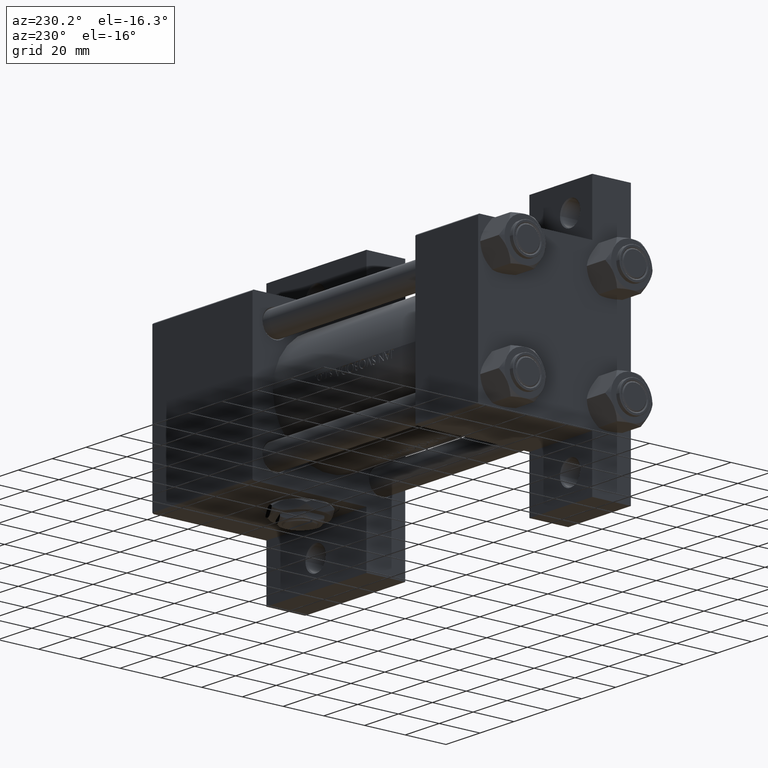
[diagram: clean part render]
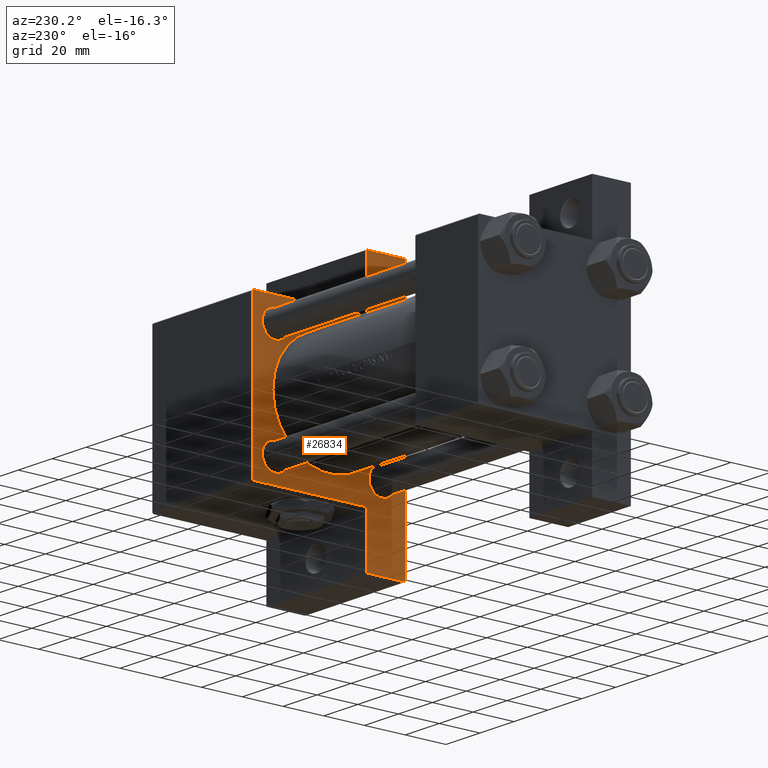
[diagram: same view with one face highlighted and labeled with its STEP entity id]
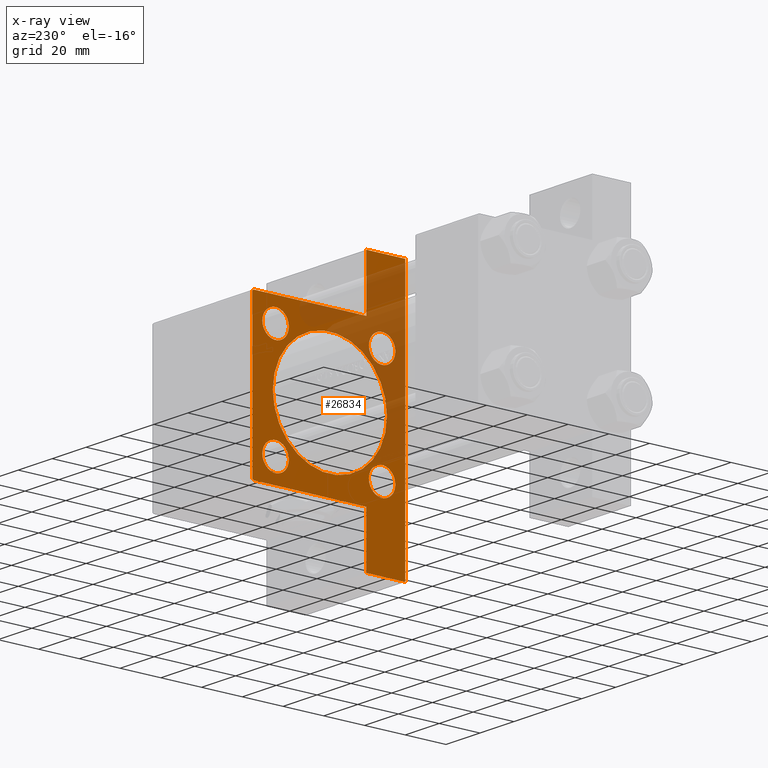
[diagram: x-ray of the same camera — body ghosted, the highlighted face saturated]
A machine part, auxiliary view. The second image highlights one B-rep face of the part: STEP entity #26834.
The next image is the same camera in x-ray: the body ghosted, the highlighted face saturated — about 36% of this face is hidden behind the body in this view.
In plain terms, the highlighted planar face has unit normal (-1, 0, 0).
Its self-contained STEP definition (entity closure, byte-faithful):
#18 = AXIS2_PLACEMENT_3D ( 'NONE', #5760, #30094, #47606 ) ;
#298 = CIRCLE ( 'NONE', #39264, 28.00000000000000000 ) ;
#419 = DIRECTION ( 'NONE',  ( 0.000000000000000000, 0.7071067811865672237, -0.7071067811865279218 ) ) ;
#515 = ORIENTED_EDGE ( 'NONE', *, *, #3621, .T. ) ;
#531 = DIRECTION ( 'NONE',  ( 0.000000000000000000, -1.000000000000000000, -1.850371707708594316E-16 ) ) ;
#606 = ORIENTED_EDGE ( 'NONE', *, *, #25821, .T. ) ;
#1743 = VECTOR ( 'NONE', #18854, 1000.000000000000000 ) ;
#2080 = ORIENTED_EDGE ( 'NONE', *, *, #12250, .F. ) ;
#2474 = ORIENTED_EDGE ( 'NONE', *, *, #16758, .T. ) ;
#2930 = EDGE_CURVE ( 'NONE', #35272, #12608, #9561, .T. ) ;
#3044 = EDGE_CURVE ( 'NONE', #8174, #33604, #43015, .T. ) ;
#3621 = EDGE_CURVE ( 'NONE', #36066, #31988, #38994, .T. ) ;
#3680 = VECTOR ( 'NONE', #8081, 1000.000000000000000 ) ;
#4305 = DIRECTION ( 'NONE',  ( 1.000000000000000000, 0.000000000000000000, -0.000000000000000000 ) ) ;
#4494 = LINE ( 'NONE', #19439, #42649 ) ;
#4589 = DIRECTION ( 'NONE',  ( 0.000000000000000000, 0.000000000000000000, -1.000000000000000000 ) ) ;
#4607 = CARTESIAN_POINT ( 'NONE',  ( 133.0000000000000000, 0.000000000000000000, 27.50000000000000000 ) ) ;
#4642 = ORIENTED_EDGE ( 'NONE', *, *, #33071, .T. ) ;
#4680 = LINE ( 'NONE', #46044, #30733 ) ;
#4736 = CARTESIAN_POINT ( 'NONE',  ( 133.0000000000000000, 0.000000000000000000, -0.5000000000000004441 ) ) ;
#5146 = CARTESIAN_POINT ( 'NONE',  ( 133.0000000000000000, 3.429011037612589276E-15, -28.50000000000000000 ) ) ;
#5760 = CARTESIAN_POINT ( 'NONE',  ( 133.0000000000000000, 26.14999999999999858, -26.15000000000000213 ) ) ;
#5762 = VERTEX_POINT ( 'NONE', #46088 ) ;
#5887 = EDGE_CURVE ( 'NONE', #12608, #35272, #19068, .T. ) ;
#5951 = ORIENTED_EDGE ( 'NONE', *, *, #24485, .T. ) ;
#6315 = LINE ( 'NONE', #44920, #45385 ) ;
#6337 = AXIS2_PLACEMENT_3D ( 'NONE', #11625, #7888, #38051 ) ;
#6656 = DIRECTION ( 'NONE',  ( 0.000000000000000000, 0.000000000000000000, 1.000000000000000000 ) ) ;
#7141 = FACE_BOUND ( 'NONE', #24046, .T. ) ;
#7302 = DIRECTION ( 'NONE',  ( 0.000000000000000000, 0.000000000000000000, 1.000000000000000000 ) ) ;
#7387 = FACE_OUTER_BOUND ( 'NONE', #27459, .T. ) ;
#7578 = ORIENTED_EDGE ( 'NONE', *, *, #27106, .T. ) ;
#7634 = LINE ( 'NONE', #19094, #19536 ) ;
#7745 = CARTESIAN_POINT ( 'NONE',  ( 133.0000000000000000, -37.50000000000000000, 36.99999999999995026 ) ) ;
#7888 = DIRECTION ( 'NONE',  ( 1.000000000000000000, 0.000000000000000000, -0.000000000000000000 ) ) ;
#8081 = DIRECTION ( 'NONE',  ( 0.000000000000000000, 0.000000000000000000, -1.000000000000000000 ) ) ;
#8174 = VERTEX_POINT ( 'NONE', #29026 ) ;
#8477 = CARTESIAN_POINT ( 'NONE',  ( 133.0000000000000000, 37.50000000000000000, 37.49999999999999289 ) ) ;
#8657 = CARTESIAN_POINT ( 'NONE',  ( 133.0000000000000000, 26.14999999999999858, 26.15000000000000213 ) ) ;
#9417 = CARTESIAN_POINT ( 'NONE',  ( 133.0000000000000000, -37.50000000000000000, -18.50000000000000000 ) ) ;
#9561 = CIRCLE ( 'NONE', #18, 6.500000000000008882 ) ;
#9635 = CARTESIAN_POINT ( 'NONE',  ( 133.0000000000000000, 26.14999999999999858, 32.65000000000000568 ) ) ;
#10545 = EDGE_LOOP ( 'NONE', ( #515, #19379 ) ) ;
#10857 = EDGE_CURVE ( 'NONE', #17666, #8174, #37314, .T. ) ;
#11210 = CARTESIAN_POINT ( 'NONE',  ( 133.0000000000000284, 63.49999999999997158, -18.50000000000000000 ) ) ;
#11625 = CARTESIAN_POINT ( 'NONE',  ( 133.0000000000000000, -26.14999999999999147, 26.15000000000000924 ) ) ;
#11654 = VERTEX_POINT ( 'NONE', #4607 ) ;
#11666 = CARTESIAN_POINT ( 'NONE',  ( 133.0000000000000000, 37.50000000000000000, 36.99999999999999289 ) ) ;
#11985 = DIRECTION ( 'NONE',  ( 0.000000000000000000, 0.000000000000000000, 1.000000000000000000 ) ) ;
#12189 = VECTOR ( 'NONE', #34632, 1000.000000000000000 ) ;
#12250 = EDGE_CURVE ( 'NONE', #21046, #38497, #30424, .T. ) ;
#12608 = VERTEX_POINT ( 'NONE', #31579 ) ;
#12757 = CIRCLE ( 'NONE', #26328, 6.499999999999995559 ) ;
#12795 = CARTESIAN_POINT ( 'NONE',  ( 133.0000000000000000, -63.50000000000000000, -18.50000000000000000 ) ) ;
#12927 = DIRECTION ( 'NONE',  ( 0.000000000000000000, 0.000000000000000000, 1.000000000000000000 ) ) ;
#13239 = CARTESIAN_POINT ( 'NONE',  ( 133.0000000000000000, 26.14999999999999858, -32.65000000000001279 ) ) ;
#13969 = EDGE_CURVE ( 'NONE', #48131, #31534, #15456, .T. ) ;
#14030 = ORIENTED_EDGE ( 'NONE', *, *, #3044, .T. ) ;
#14324 = VERTEX_POINT ( 'NONE', #45782 ) ;
#14421 = AXIS2_PLACEMENT_3D ( 'NONE', #40333, #32862, #12927 ) ;
#15118 = CARTESIAN_POINT ( 'NONE',  ( 133.0000000000000284, 63.49999999999997158, -18.50000000000000000 ) ) ;
#15211 = VERTEX_POINT ( 'NONE', #5146 ) ;
#15291 = CARTESIAN_POINT ( 'NONE',  ( 133.0000000000000000, -63.50000000000000000, -18.50000000000000000 ) ) ;
#15456 = LINE ( 'NONE', #45600, #12189 ) ;
#15467 = DIRECTION ( 'NONE',  ( 1.067522139062651657E-15, 1.000000000000000000, -0.000000000000000000 ) ) ;
#15675 = EDGE_CURVE ( 'NONE', #15211, #11654, #298, .T. ) ;
#16592 = DIRECTION ( 'NONE',  ( 0.000000000000000000, -1.000000000000000000, 0.000000000000000000 ) ) ;
#16758 = EDGE_CURVE ( 'NONE', #11654, #15211, #25795, .T. ) ;
#17666 = VERTEX_POINT ( 'NONE', #11210 ) ;
#17696 = DIRECTION ( 'NONE',  ( 0.000000000000000000, 0.000000000000000000, -1.000000000000000000 ) ) ;
#17824 = AXIS2_PLACEMENT_3D ( 'NONE', #28664, #35906, #17696 ) ;
#18606 = PLANE ( 'NONE',  #25217 ) ;
#18854 = DIRECTION ( 'NONE',  ( 0.000000000000000000, 0.000000000000000000, -1.000000000000000000 ) ) ;
#19000 = CARTESIAN_POINT ( 'NONE',  ( 133.0000000000000000, -26.14999999999999147, 26.15000000000000924 ) ) ;
#19068 = CIRCLE ( 'NONE', #14421, 6.500000000000008882 ) ;
#19094 = CARTESIAN_POINT ( 'NONE',  ( 133.0000000000000000, 37.24999999999894840, 37.25000000000101608 ) ) ;
#19379 = ORIENTED_EDGE ( 'NONE', *, *, #42031, .T. ) ;
#19439 = CARTESIAN_POINT ( 'NONE',  ( 133.0000000000000284, 63.49999999999997158, -18.50000000000000000 ) ) ;
#19512 = EDGE_CURVE ( 'NONE', #44075, #14324, #42512, .T. ) ;
#19536 = VECTOR ( 'NONE', #419, 1000.000000000000000 ) ;
#19540 = LINE ( 'NONE', #12795, #35538 ) ;
#20682 = DIRECTION ( 'NONE',  ( 1.000000000000000000, 0.000000000000000000, -0.000000000000000000 ) ) ;
#21046 = VERTEX_POINT ( 'NONE', #28421 ) ;
#21241 = CIRCLE ( 'NONE', #33964, 6.500000000000008882 ) ;
#21943 = ORIENTED_EDGE ( 'NONE', *, *, #48716, .T. ) ;
#22114 = FACE_BOUND ( 'NONE', #32325, .T. ) ;
#22255 = DIRECTION ( 'NONE',  ( 0.000000000000000000, -9.251858538542972814E-17, -1.000000000000000000 ) ) ;
#23114 = ORIENTED_EDGE ( 'NONE', *, *, #2930, .T. ) ;
#23593 = CARTESIAN_POINT ( 'NONE',  ( 133.0000000000000000, -63.50000000000000000, -37.50000000000000000 ) ) ;
#23690 = ORIENTED_EDGE ( 'NONE', *, *, #13969, .T. ) ;
#24046 = EDGE_LOOP ( 'NONE', ( #2474, #27864 ) ) ;
#24485 = EDGE_CURVE ( 'NONE', #45171, #17666, #4494, .T. ) ;
#25217 = AXIS2_PLACEMENT_3D ( 'NONE', #25601, #29829, #6656 ) ;
#25601 = CARTESIAN_POINT ( 'NONE',  ( 133.0000000000000000, 0.000000000000000000, 0.000000000000000000 ) ) ;
#25795 = CIRCLE ( 'NONE', #17824, 28.00000000000000000 ) ;
#25821 = EDGE_CURVE ( 'NONE', #48472, #38497, #4680, .T. ) ;
#25890 = ORIENTED_EDGE ( 'NONE', *, *, #26727, .T. ) ;
#25945 = ORIENTED_EDGE ( 'NONE', *, *, #46716, .T. ) ;
#26328 = AXIS2_PLACEMENT_3D ( 'NONE', #28160, #20682, #11985 ) ;
#26727 = EDGE_CURVE ( 'NONE', #14324, #44075, #21241, .T. ) ;
#26834 = ADVANCED_FACE ( 'NONE', ( #29334, #48747, #40545, #22114, #7141, #7387 ), #18606, .T. ) ;
#27082 = ORIENTED_EDGE ( 'NONE', *, *, #33924, .F. ) ;
#27106 = EDGE_CURVE ( 'NONE', #21046, #39269, #7634, .T. ) ;
#27459 = EDGE_LOOP ( 'NONE', ( #2080, #7578, #4642, #5951, #41632, #14030, #27082, #23690, #40847, #606 ) ) ;
#27864 = ORIENTED_EDGE ( 'NONE', *, *, #15675, .T. ) ;
#28160 = CARTESIAN_POINT ( 'NONE',  ( 133.0000000000000000, 26.14999999999999858, 26.15000000000000213 ) ) ;
#28421 = CARTESIAN_POINT ( 'NONE',  ( 133.0000000000000000, 36.99999999999997158, 37.49999999999999289 ) ) ;
#28664 = CARTESIAN_POINT ( 'NONE',  ( 133.0000000000000000, 0.000000000000000000, -0.5000000000000004441 ) ) ;
#29026 = CARTESIAN_POINT ( 'NONE',  ( 133.0000000000000284, 63.49999999999997158, -37.50000000000000000 ) ) ;
#29312 = CARTESIAN_POINT ( 'NONE',  ( 133.0000000000000000, -26.14999999999999147, -19.65000000000000213 ) ) ;
#29334 = FACE_BOUND ( 'NONE', #10545, .T. ) ;
#29829 = DIRECTION ( 'NONE',  ( -1.000000000000000000, -0.000000000000000000, 0.000000000000000000 ) ) ;
#30094 = DIRECTION ( 'NONE',  ( 1.000000000000000000, 0.000000000000000000, -0.000000000000000000 ) ) ;
#30239 = AXIS2_PLACEMENT_3D ( 'NONE', #19000, #4305, #7302 ) ;
#30424 = LINE ( 'NONE', #8477, #47899 ) ;
#30733 = VECTOR ( 'NONE', #42570, 1000.000000000000000 ) ;
#30910 = DIRECTION ( 'NONE',  ( 0.000000000000000000, 0.000000000000000000, -1.000000000000000000 ) ) ;
#31278 = EDGE_LOOP ( 'NONE', ( #21943, #25945 ) ) ;
#31534 = VERTEX_POINT ( 'NONE', #9417 ) ;
#31579 = CARTESIAN_POINT ( 'NONE',  ( 133.0000000000000000, 26.14999999999999858, -19.64999999999999503 ) ) ;
#31988 = VERTEX_POINT ( 'NONE', #46214 ) ;
#32325 = EDGE_LOOP ( 'NONE', ( #45291, #25890 ) ) ;
#32331 = DIRECTION ( 'NONE',  ( 1.000000000000000000, 0.000000000000000000, -0.000000000000000000 ) ) ;
#32554 = CARTESIAN_POINT ( 'NONE',  ( 133.0000000000000000, 37.50000000000000000, -37.50000000000000000 ) ) ;
#32862 = DIRECTION ( 'NONE',  ( 1.000000000000000000, 0.000000000000000000, -0.000000000000000000 ) ) ;
#33071 = EDGE_CURVE ( 'NONE', #39269, #45171, #46430, .T. ) ;
#33604 = VERTEX_POINT ( 'NONE', #23593 ) ;
#33924 = EDGE_CURVE ( 'NONE', #48131, #33604, #19540, .T. ) ;
#33964 = AXIS2_PLACEMENT_3D ( 'NONE', #39316, #32331, #44040 ) ;
#34298 = CIRCLE ( 'NONE', #35894, 6.499999999999995559 ) ;
#34632 = DIRECTION ( 'NONE',  ( 0.000000000000000000, 1.000000000000000000, 0.000000000000000000 ) ) ;
#35272 = VERTEX_POINT ( 'NONE', #13239 ) ;
#35330 = DIRECTION ( 'NONE',  ( 1.000000000000000000, 0.000000000000000000, -0.000000000000000000 ) ) ;
#35538 = VECTOR ( 'NONE', #4589, 1000.000000000000000 ) ;
#35894 = AXIS2_PLACEMENT_3D ( 'NONE', #8657, #35330, #36506 ) ;
#35906 = DIRECTION ( 'NONE',  ( 1.000000000000000000, 0.000000000000000000, 0.000000000000000000 ) ) ;
#36066 = VERTEX_POINT ( 'NONE', #48640 ) ;
#36506 = DIRECTION ( 'NONE',  ( 0.000000000000000000, 0.000000000000000000, 1.000000000000000000 ) ) ;
#36988 = EDGE_LOOP ( 'NONE', ( #43880, #23114 ) ) ;
#37314 = LINE ( 'NONE', #15118, #1743 ) ;
#38051 = DIRECTION ( 'NONE',  ( 0.000000000000000000, 0.000000000000000000, 1.000000000000000000 ) ) ;
#38497 = VERTEX_POINT ( 'NONE', #39980 ) ;
#38994 = CIRCLE ( 'NONE', #30239, 6.500000000000008882 ) ;
#39264 = AXIS2_PLACEMENT_3D ( 'NONE', #4736, #42624, #30910 ) ;
#39269 = VERTEX_POINT ( 'NONE', #11666 ) ;
#39316 = CARTESIAN_POINT ( 'NONE',  ( 133.0000000000000000, -26.14999999999999147, -26.15000000000000924 ) ) ;
#39980 = CARTESIAN_POINT ( 'NONE',  ( 133.0000000000000000, -36.99999999999994316, 37.49999999999997868 ) ) ;
#40121 = AXIS2_PLACEMENT_3D ( 'NONE', #44586, #43846, #40361 ) ;
#40333 = CARTESIAN_POINT ( 'NONE',  ( 133.0000000000000000, 26.14999999999999858, -26.15000000000000213 ) ) ;
#40361 = DIRECTION ( 'NONE',  ( 0.000000000000000000, 0.000000000000000000, 1.000000000000000000 ) ) ;
#40545 = FACE_BOUND ( 'NONE', #36988, .T. ) ;
#40847 = ORIENTED_EDGE ( 'NONE', *, *, #43144, .F. ) ;
#41632 = ORIENTED_EDGE ( 'NONE', *, *, #10857, .T. ) ;
#42031 = EDGE_CURVE ( 'NONE', #31988, #36066, #49285, .T. ) ;
#42512 = CIRCLE ( 'NONE', #40121, 6.500000000000008882 ) ;
#42570 = DIRECTION ( 'NONE',  ( -0.000000000000000000, 0.7071067811865672237, 0.7071067811865279218 ) ) ;
#42624 = DIRECTION ( 'NONE',  ( 1.000000000000000000, 0.000000000000000000, 0.000000000000000000 ) ) ;
#42649 = VECTOR ( 'NONE', #15467, 1000.000000000000000 ) ;
#43015 = LINE ( 'NONE', #32554, #48543 ) ;
#43144 = EDGE_CURVE ( 'NONE', #48472, #31534, #6315, .T. ) ;
#43846 = DIRECTION ( 'NONE',  ( 1.000000000000000000, 0.000000000000000000, -0.000000000000000000 ) ) ;
#43880 = ORIENTED_EDGE ( 'NONE', *, *, #5887, .T. ) ;
#44040 = DIRECTION ( 'NONE',  ( 0.000000000000000000, 0.000000000000000000, 1.000000000000000000 ) ) ;
#44075 = VERTEX_POINT ( 'NONE', #29312 ) ;
#44586 = CARTESIAN_POINT ( 'NONE',  ( 133.0000000000000000, -26.14999999999999147, -26.15000000000000924 ) ) ;
#44920 = CARTESIAN_POINT ( 'NONE',  ( 133.0000000000000000, -37.50000000000000000, 37.49999999999997868 ) ) ;
#44980 = VERTEX_POINT ( 'NONE', #9635 ) ;
#45171 = VERTEX_POINT ( 'NONE', #45497 ) ;
#45291 = ORIENTED_EDGE ( 'NONE', *, *, #19512, .T. ) ;
#45385 = VECTOR ( 'NONE', #22255, 1000.000000000000000 ) ;
#45497 = CARTESIAN_POINT ( 'NONE',  ( 133.0000000000000000, 37.50000000000000000, -18.50000000000000355 ) ) ;
#45600 = CARTESIAN_POINT ( 'NONE',  ( 133.0000000000000000, -63.50000000000000000, -18.50000000000000000 ) ) ;
#45708 = CARTESIAN_POINT ( 'NONE',  ( 133.0000000000000000, 37.50000000000000000, 37.49999999999999289 ) ) ;
#45782 = CARTESIAN_POINT ( 'NONE',  ( 133.0000000000000000, -26.14999999999999147, -32.65000000000002700 ) ) ;
#46044 = CARTESIAN_POINT ( 'NONE',  ( 133.0000000000000000, -37.24999999999893419, 37.25000000000100187 ) ) ;
#46088 = CARTESIAN_POINT ( 'NONE',  ( 133.0000000000000000, 26.14999999999999858, 19.65000000000000568 ) ) ;
#46214 = CARTESIAN_POINT ( 'NONE',  ( 133.0000000000000000, -26.14999999999999147, 19.65000000000000213 ) ) ;
#46430 = LINE ( 'NONE', #45708, #3680 ) ;
#46716 = EDGE_CURVE ( 'NONE', #5762, #44980, #12757, .T. ) ;
#47606 = DIRECTION ( 'NONE',  ( 0.000000000000000000, 0.000000000000000000, 1.000000000000000000 ) ) ;
#47899 = VECTOR ( 'NONE', #531, 1000.000000000000000 ) ;
#48131 = VERTEX_POINT ( 'NONE', #15291 ) ;
#48472 = VERTEX_POINT ( 'NONE', #7745 ) ;
#48543 = VECTOR ( 'NONE', #16592, 1000.000000000000000 ) ;
#48640 = CARTESIAN_POINT ( 'NONE',  ( 133.0000000000000000, -26.14999999999999147, 32.65000000000001990 ) ) ;
#48716 = EDGE_CURVE ( 'NONE', #44980, #5762, #34298, .T. ) ;
#48747 = FACE_BOUND ( 'NONE', #31278, .T. ) ;
#49285 = CIRCLE ( 'NONE', #6337, 6.500000000000008882 ) ;